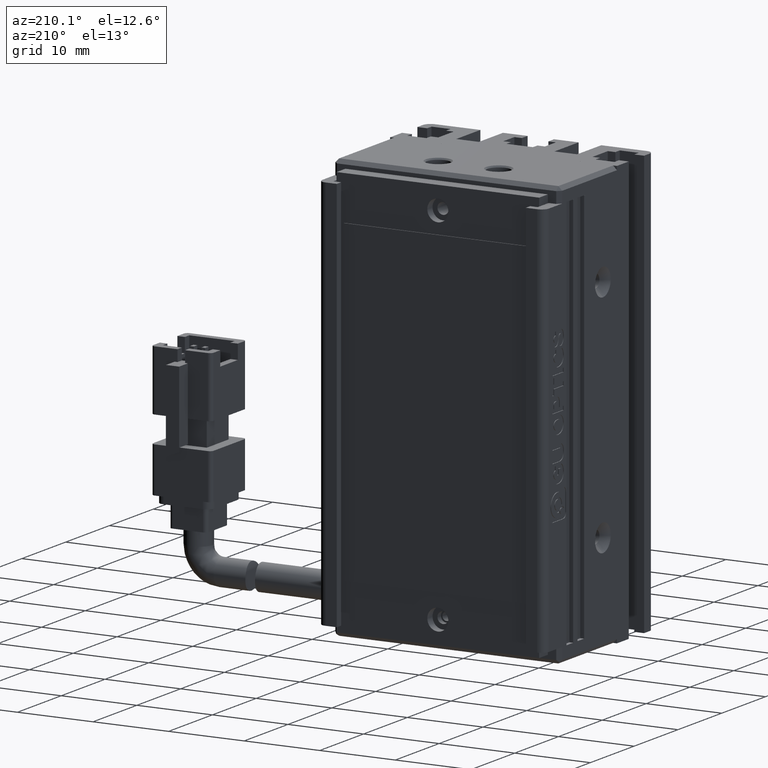
[diagram: clean part render]
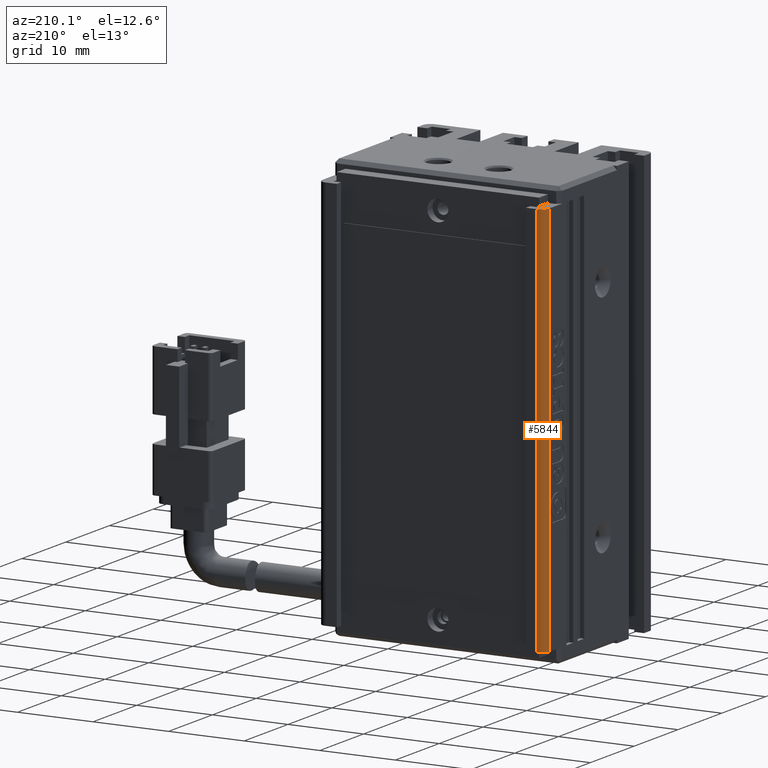
[diagram: same view with one face highlighted and labeled with its STEP entity id]
A machine part, auxiliary view. The second image highlights one B-rep face of the part: STEP entity #5844.
In plain terms, the highlighted cylindrical surface (edge-blend (fillet) strip) has radius 1 mm, axis along (-0, -0, -1).
Its self-contained STEP definition (entity closure, byte-faithful):
#741 = VERTEX_POINT ( 'NONE', #23390 ) ;
#798 = VECTOR ( 'NONE', #5305, 1000.000000000000000 ) ;
#1720 = CARTESIAN_POINT ( 'NONE',  ( 26.92537974683542100, 35.69594479660387500, -141.0000000000000000 ) ) ;
#1913 = DIRECTION ( 'NONE',  ( -1.000000000000000000, 0.0000000000000000000, 0.0000000000000000000 ) ) ;
#2343 = CIRCLE ( 'NONE', #7407, 0.9999999999999974500 ) ;
#3204 = ORIENTED_EDGE ( 'NONE', *, *, #17981, .T. ) ;
#3281 = LINE ( 'NONE', #13421, #18772 ) ;
#3366 = VERTEX_POINT ( 'NONE', #16988 ) ;
#3720 = VERTEX_POINT ( 'NONE', #1720 ) ;
#3887 = VERTEX_POINT ( 'NONE', #20243 ) ;
#5305 = DIRECTION ( 'NONE',  ( -0.0000000000000000000, -0.0000000000000000000, -1.000000000000000000 ) ) ;
#5844 = ADVANCED_FACE ( 'NONE', ( #14231 ), #16921, .T. ) ;
#6178 = LINE ( 'NONE', #18810, #798 ) ;
#7407 = AXIS2_PLACEMENT_3D ( 'NONE', #20909, #9390, #22788 ) ;
#9390 = DIRECTION ( 'NONE',  ( 0.0000000000000000000, 0.0000000000000000000, 1.000000000000000000 ) ) ;
#11143 = DIRECTION ( 'NONE',  ( -1.000000000000000000, 0.0000000000000000000, 0.0000000000000000000 ) ) ;
#11231 = CARTESIAN_POINT ( 'NONE',  ( 26.92537974683542100, 34.69594479660387500, -87.00000000000001400 ) ) ;
#12173 = AXIS2_PLACEMENT_3D ( 'NONE', #25022, #13679, #1913 ) ;
#13421 = CARTESIAN_POINT ( 'NONE',  ( 25.92537974683541800, 34.69594479660387500, -87.00000000000001400 ) ) ;
#13679 = DIRECTION ( 'NONE',  ( -0.0000000000000000000, -0.0000000000000000000, -1.000000000000000000 ) ) ;
#14231 = FACE_OUTER_BOUND ( 'NONE', #16181, .T. ) ;
#14590 = CIRCLE ( 'NONE', #12173, 0.9999999999999974500 ) ;
#15178 = ORIENTED_EDGE ( 'NONE', *, *, #24555, .F. ) ;
#15342 = DIRECTION ( 'NONE',  ( -0.0000000000000000000, -0.0000000000000000000, -1.000000000000000000 ) ) ;
#16181 = EDGE_LOOP ( 'NONE', ( #23519, #15178, #19126, #3204 ) ) ;
#16921 = CYLINDRICAL_SURFACE ( 'NONE', #20573, 0.9999999999999974500 ) ;
#16988 = CARTESIAN_POINT ( 'NONE',  ( 25.92537974683541800, 34.69594479660387500, -141.0000000000000000 ) ) ;
#17981 = EDGE_CURVE ( 'NONE', #741, #3720, #6178, .T. ) ;
#18772 = VECTOR ( 'NONE', #15342, 1000.000000000000000 ) ;
#18810 = CARTESIAN_POINT ( 'NONE',  ( 26.92537974683542100, 35.69594479660387500, -87.00000000000001400 ) ) ;
#19126 = ORIENTED_EDGE ( 'NONE', *, *, #24584, .T. ) ;
#20243 = CARTESIAN_POINT ( 'NONE',  ( 25.92537974683541800, 34.69594479660387500, -89.00000000000000000 ) ) ;
#20573 = AXIS2_PLACEMENT_3D ( 'NONE', #11231, #22772, #11143 ) ;
#20909 = CARTESIAN_POINT ( 'NONE',  ( 26.92537974683542100, 34.69594479660387500, -141.0000000000000000 ) ) ;
#22772 = DIRECTION ( 'NONE',  ( -0.0000000000000000000, -0.0000000000000000000, -1.000000000000000000 ) ) ;
#22788 = DIRECTION ( 'NONE',  ( -1.000000000000000000, 0.0000000000000000000, 0.0000000000000000000 ) ) ;
#23390 = CARTESIAN_POINT ( 'NONE',  ( 26.92537974683542100, 35.69594479660387500, -89.00000000000000000 ) ) ;
#23519 = ORIENTED_EDGE ( 'NONE', *, *, #24516, .T. ) ;
#24516 = EDGE_CURVE ( 'NONE', #3720, #3366, #2343, .T. ) ;
#24555 = EDGE_CURVE ( 'NONE', #3887, #3366, #3281, .T. ) ;
#24584 = EDGE_CURVE ( 'NONE', #3887, #741, #14590, .T. ) ;
#25022 = CARTESIAN_POINT ( 'NONE',  ( 26.92537974683542100, 34.69594479660387500, -89.00000000000000000 ) ) ;